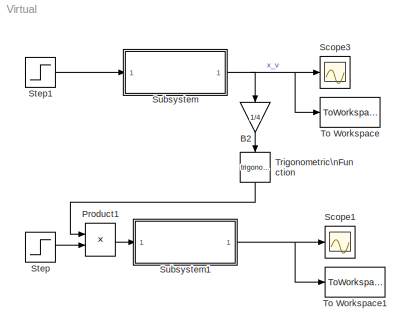
MODEL Virtual
KIND model
BLOCK [Gain] B2
  Gain = 1/4
  OutDataTypeStr = Inherit: Inherit via internal rule
  ParamDataTypeStr = Inherit: Inherit via internal rule
  SID = 1
  SaturateOnIntegerOverflow = off
BLOCK [Product] Product1
  InputSameDT = off
  OutDataTypeStr = Inherit: Inherit via internal rule
  Ports = [2, 1]
  SID = 2
  SaturateOnIntegerOverflow = off
BLOCK [Scope] Scope1
  Ports = [1]
  SID = 3
  ScopeSpecificationString = Simulink.scopes.TimeScopeBlockCfg('CurrentConfiguration', extmgr.ConfigurationSet(extmgr.Configuration('Core','General UI',true),extmgr.Configuration('Core','Source UI',true),extmgr.Configuration('Sources','WiredSimulink',true,'DataLoggingSaveFormat','StructureWithTime','DataLoggingLimitDataPoints',true,'DataLoggingDecimation','1','DataLoggingDecimateData',true),extmgr.Configuration('Visuals','Tim...<+1637ch>
BLOCK [Scope] Scope3
  Ports = [1]
  SID = 4
  ScopeSpecificationString = C++SS(StrPVP('Location','[772, 232, 1096, 471]'),StrPVP('Open','off'),MxPVP('AxesTitles',24,'struct(''axes1'',''%<SignalLabel>'')'),StrPVP('YMin','-20'),StrPVP('YMax','30'),StrPVP('SaveName','ScopeData1'),StrPVP('DataFormat','StructureWithTime'),StrPVP('BlockParamSampleTime','0'),StrPVP('LimitDataPoints','on'),StrPVP('Decimation','1'),StrPVP('BlockParamSampleInput','off'))
BLOCK [Step] Step
  After = 8
  Before = 5
  SID = 5
  SampleTime = 1
BLOCK [Step] Step1
  After = 8
  Before = 4
  SID = 6
  SampleTime = 0
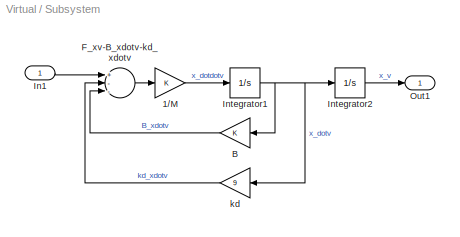
BLOCK [SubSystem] Subsystem
  Ports = [1, 1]
  RequestExecContextInheritance = off
  SID = 7
  Variant = off
BLOCK [Gain] Subsystem/1//M
  OutDataTypeStr = Inherit: Inherit via internal rule
  ParamDataTypeStr = Inherit: Inherit via internal rule
  SID = 9
  SaturateOnIntegerOverflow = off
BLOCK [Gain] Subsystem/B
  OutDataTypeStr = Inherit: Inherit via internal rule
  ParamDataTypeStr = Inherit: Inherit via internal rule
  SID = 10
  SaturateOnIntegerOverflow = off
BLOCK [Sum] Subsystem/F_xv-B_xdotv-kd_xdotv
  InputSameDT = off
  Inputs = +--
  OutDataTypeStr = Inherit: Inherit via internal rule
  Ports = [3, 1]
  SID = 11
  SaturateOnIntegerOverflow = off
BLOCK [Inport] Subsystem/In1
  IconDisplay = Port number
  SID = 8
BLOCK [Integrator] Subsystem/Integrator1
  Ports = [1, 1]
  SID = 12
BLOCK [Integrator] Subsystem/Integrator2
  Ports = [1, 1]
  SID = 13
BLOCK [Outport] Subsystem/Out1
  IconDisplay = Port number
  SID = 15
BLOCK [Gain] Subsystem/kd
  Gain = 9
  OutDataTypeStr = Inherit: Inherit via internal rule
  ParamDataTypeStr = Inherit: Inherit via internal rule
  SID = 14
  SaturateOnIntegerOverflow = off
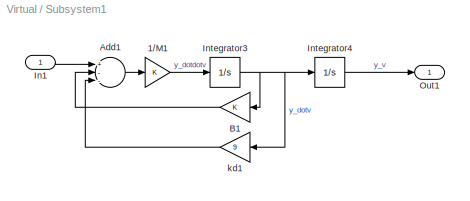
BLOCK [SubSystem] Subsystem1
  Ports = [1, 1]
  RequestExecContextInheritance = off
  SID = 16
  Variant = off
BLOCK [Gain] Subsystem1/1//M1
  OutDataTypeStr = Inherit: Inherit via internal rule
  ParamDataTypeStr = Inherit: Inherit via internal rule
  SID = 18
  SaturateOnIntegerOverflow = off
BLOCK [Sum] Subsystem1/Add1
  InputSameDT = off
  Inputs = +--
  OutDataTypeStr = Inherit: Inherit via internal rule
  Ports = [3, 1]
  SID = 19
  SaturateOnIntegerOverflow = off
BLOCK [Gain] Subsystem1/B1
  OutDataTypeStr = Inherit: Inherit via internal rule
  ParamDataTypeStr = Inherit: Inherit via internal rule
  SID = 20
  SaturateOnIntegerOverflow = off
BLOCK [Inport] Subsystem1/In1
  IconDisplay = Port number
  SID = 17
BLOCK [Integrator] Subsystem1/Integrator3
  Ports = [1, 1]
  SID = 21
BLOCK [Integrator] Subsystem1/Integrator4
  Ports = [1, 1]
  SID = 22
BLOCK [Outport] Subsystem1/Out1
  IconDisplay = Port number
  SID = 24
BLOCK [Gain] Subsystem1/kd1
  Gain = 9
  OutDataTypeStr = Inherit: Inherit via internal rule
  ParamDataTypeStr = Inherit: Inherit via internal rule
  SID = 23
  SaturateOnIntegerOverflow = off
BLOCK [ToWorkspace] To Workspace
  MaxDataPoints = inf
  Ports = [1]
  SID = 25
  SampleTime = -1
  SaveFormat = Structure With Time
  VariableName = simout
BLOCK [ToWorkspace] To Workspace1
  MaxDataPoints = inf
  Ports = [1]
  SID = 26
  SampleTime = -1
  SaveFormat = Structure With Time
  VariableName = simout1
BLOCK [Trigonometry] Trigonometric\nFunction
  Ports = [1, 1]
  SID = 27
LINE B2:1 -> Trigonometric\nFunction:1
LINE Product1:1 -> Subsystem1:1
LINE Step1:1 -> Subsystem:1
LINE Step:1 -> Product1:2
LINE Subsystem/1//M:1 -> Subsystem/Integrator1:1
LINE Subsystem/B:1 -> Subsystem/F_xv-B_xdotv-kd_xdotv:3
LINE Subsystem/F_xv-B_xdotv-kd_xdotv:1 -> Subsystem/1//M:1
LINE Subsystem/In1:1 -> Subsystem/F_xv-B_xdotv-kd_xdotv:1
NET Subsystem/Integrator1:1 -> Subsystem/B:1, Subsystem/Integrator2:1, Subsystem/kd:1
LINE Subsystem/Integrator2:1 -> Subsystem/Out1:1
LINE Subsystem/kd:1 -> Subsystem/F_xv-B_xdotv-kd_xdotv:2
LINE Subsystem1/1//M1:1 -> Subsystem1/Integrator3:1
LINE Subsystem1/Add1:1 -> Subsystem1/1//M1:1
LINE Subsystem1/B1:1 -> Subsystem1/Add1:2
LINE Subsystem1/In1:1 -> Subsystem1/Add1:1
NET Subsystem1/Integrator3:1 -> Subsystem1/B1:1, Subsystem1/Integrator4:1, Subsystem1/kd1:1
LINE Subsystem1/Integrator4:1 -> Subsystem1/Out1:1
LINE Subsystem1/kd1:1 -> Subsystem1/Add1:3
NET Subsystem1:1 -> Scope1:1, To Workspace1:1
NET Subsystem:1 -> B2:1, Scope3:1, To Workspace:1
LINE Trigonometric\nFunction:1 -> Product1:1
note: NET lines group one-source signal fan-out (src -> all destinations, sorted); 1:1 wires keep LINE
